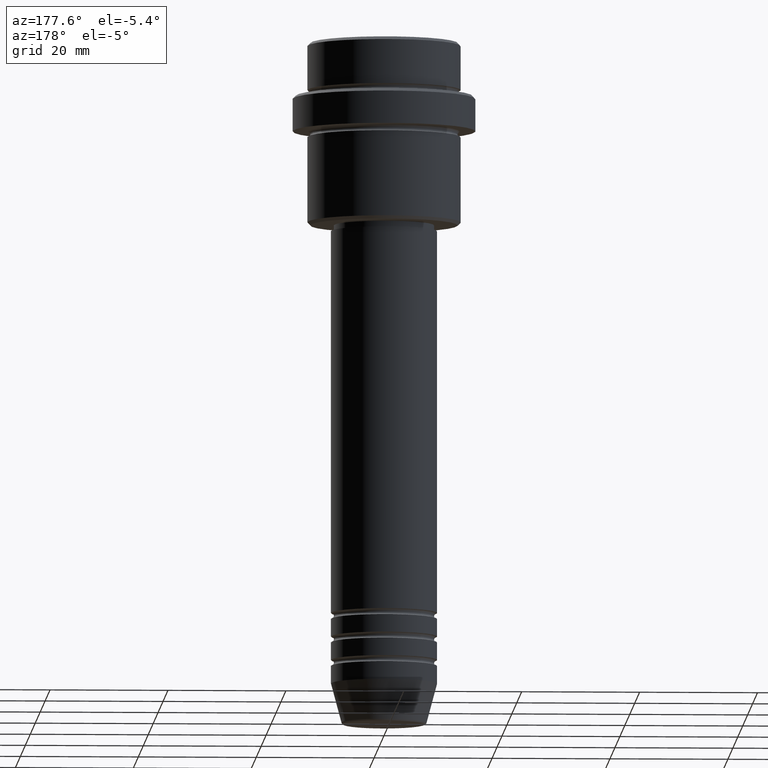
[diagram: clean part render]
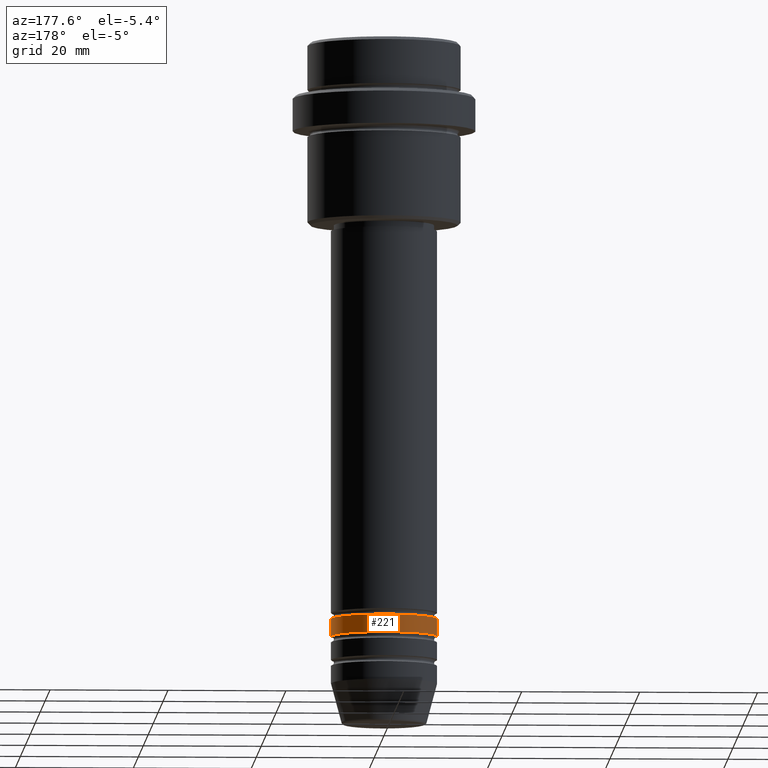
[diagram: same view with one face highlighted and labeled with its STEP entity id]
A machine part, auxiliary view. The second image highlights one B-rep face of the part: STEP entity #221.
In plain terms, the highlighted cylindrical surface (partial cylindrical patch) has radius 9 mm, axis along (-0, -0, 1).
Its self-contained STEP definition (entity closure, byte-faithful):
#18 = DIRECTION ( 'NONE',  ( 1.000000000000000000, 0.000000000000000000, 0.000000000000000000 ) ) ;
#33 = CARTESIAN_POINT ( 'NONE',  ( -9.000000000000000000, 1.102182119232617714E-15, -100.9999999999999005 ) ) ;
#85 = EDGE_CURVE ( 'NONE', #90, #1090, #1149, .T. ) ;
#90 = VERTEX_POINT ( 'NONE', #1354 ) ;
#142 = AXIS2_PLACEMENT_3D ( 'NONE', #580, #573, #335 ) ;
#167 = DIRECTION ( 'NONE',  ( 1.000000000000000000, 0.000000000000000000, 0.000000000000000000 ) ) ;
#176 = EDGE_CURVE ( 'NONE', #994, #439, #1097, .T. ) ;
#221 = ADVANCED_FACE ( 'NONE', ( #1112 ), #893, .T. ) ;
#335 = DIRECTION ( 'NONE',  ( 1.000000000000000000, 0.000000000000000000, 0.000000000000000000 ) ) ;
#367 = DIRECTION ( 'NONE',  ( -0.000000000000000000, -0.000000000000000000, 1.000000000000000000 ) ) ;
#439 = VERTEX_POINT ( 'NONE', #1296 ) ;
#448 = VECTOR ( 'NONE', #367, 1000.000000000000000 ) ;
#526 = ORIENTED_EDGE ( 'NONE', *, *, #545, .T. ) ;
#545 = EDGE_CURVE ( 'NONE', #1090, #439, #1137, .T. ) ;
#573 = DIRECTION ( 'NONE',  ( -0.000000000000000000, -0.000000000000000000, 1.000000000000000000 ) ) ;
#580 = CARTESIAN_POINT ( 'NONE',  ( 0.000000000000000000, 0.000000000000000000, 0.000000000000000000 ) ) ;
#582 = CARTESIAN_POINT ( 'NONE',  ( -9.000000000000000000, 1.102182119232617714E-15, 0.000000000000000000 ) ) ;
#589 = CARTESIAN_POINT ( 'NONE',  ( 0.000000000000000000, 0.000000000000000000, -100.9999999999999005 ) ) ;
#594 = EDGE_LOOP ( 'NONE', ( #1041, #526, #735, #624 ) ) ;
#616 = CARTESIAN_POINT ( 'NONE',  ( 9.000000000000000000, 0.000000000000000000, 0.000000000000000000 ) ) ;
#624 = ORIENTED_EDGE ( 'NONE', *, *, #702, .F. ) ;
#702 = EDGE_CURVE ( 'NONE', #90, #994, #1257, .T. ) ;
#735 = ORIENTED_EDGE ( 'NONE', *, *, #176, .F. ) ;
#773 = DIRECTION ( 'NONE',  ( -0.000000000000000000, -0.000000000000000000, 1.000000000000000000 ) ) ;
#785 = CARTESIAN_POINT ( 'NONE',  ( 0.000000000000000000, 0.000000000000000000, -97.99999999999988631 ) ) ;
#788 = AXIS2_PLACEMENT_3D ( 'NONE', #785, #773, #18 ) ;
#810 = AXIS2_PLACEMENT_3D ( 'NONE', #589, #824, #167 ) ;
#824 = DIRECTION ( 'NONE',  ( -0.000000000000000000, -0.000000000000000000, 1.000000000000000000 ) ) ;
#893 = CYLINDRICAL_SURFACE ( 'NONE', #142, 9.000000000000000000 ) ;
#959 = DIRECTION ( 'NONE',  ( -0.000000000000000000, -0.000000000000000000, 1.000000000000000000 ) ) ;
#994 = VERTEX_POINT ( 'NONE', #1101 ) ;
#1041 = ORIENTED_EDGE ( 'NONE', *, *, #85, .T. ) ;
#1090 = VERTEX_POINT ( 'NONE', #33 ) ;
#1097 = CIRCLE ( 'NONE', #788, 9.000000000000000000 ) ;
#1101 = CARTESIAN_POINT ( 'NONE',  ( 9.000000000000000000, 0.000000000000000000, -97.99999999999988631 ) ) ;
#1112 = FACE_OUTER_BOUND ( 'NONE', #594, .T. ) ;
#1126 = VECTOR ( 'NONE', #959, 1000.000000000000000 ) ;
#1137 = LINE ( 'NONE', #582, #448 ) ;
#1149 = CIRCLE ( 'NONE', #810, 9.000000000000000000 ) ;
#1257 = LINE ( 'NONE', #616, #1126 ) ;
#1296 = CARTESIAN_POINT ( 'NONE',  ( -9.000000000000000000, 1.102182119232617714E-15, -97.99999999999988631 ) ) ;
#1354 = CARTESIAN_POINT ( 'NONE',  ( 9.000000000000000000, 0.000000000000000000, -100.9999999999999005 ) ) ;